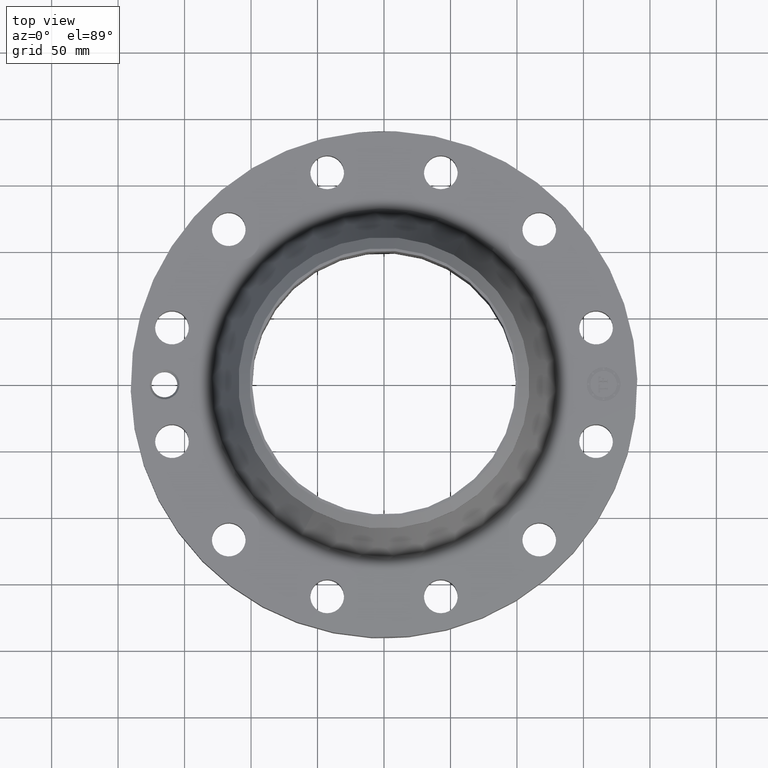
[diagram: clean part render]
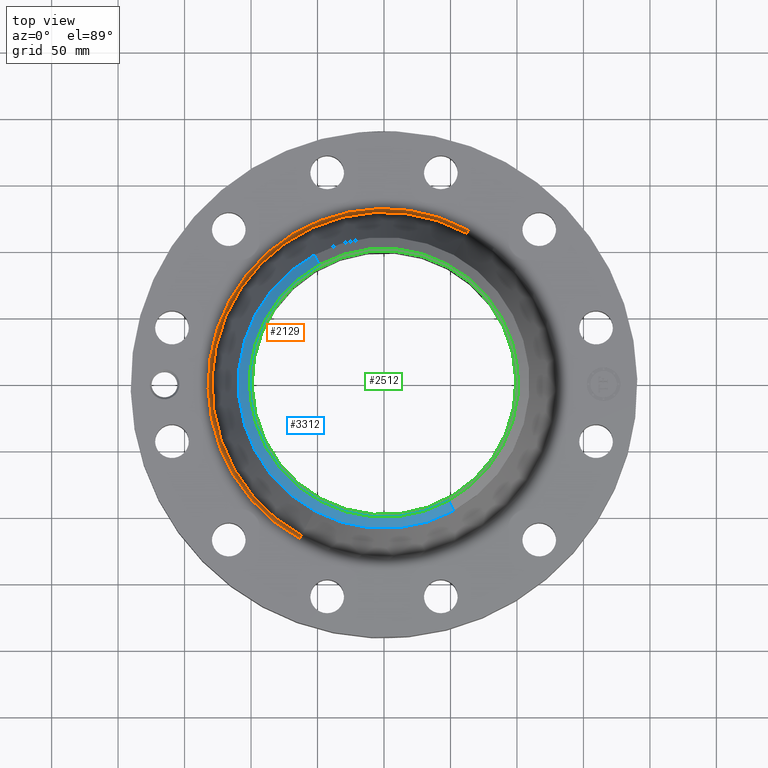
[diagram: same view with three faces highlighted in distinct colors, each labeled with its STEP entity id]
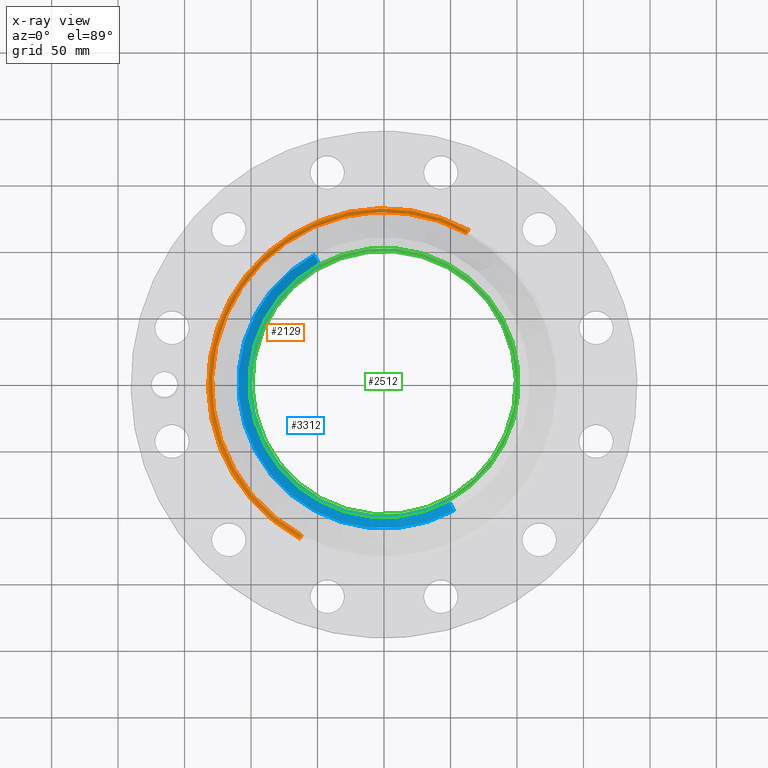
[diagram: x-ray of the same camera — body ghosted, the three highlighted faces saturated]
A machine part, top view with three faces highlighted in distinct colors.
The next image is the same camera in x-ray (body ghosted, the three faces saturated) — at least one of them is partly hidden behind the body in this view.
Their STEP definitions:

[orange] entity #2129 — the highlighted toroidal blend (fillet) surface has major radius 132.324 mm and minor (blend) radius 3.048 mm.
#575=AXIS2_PLACEMENT_3D('Circle Axis2P3D',#573,#574,$) ;
#2090=AXIS2_PLACEMENT_3D('Torus Axis2P3D',#2087,#2088,#2089) ;
#2094=AXIS2_PLACEMENT_3D('Circle Axis2P3D',#2092,#2093,$) ;
#2108=AXIS2_PLACEMENT_3D('Circle Axis2P3D',#2106,#2107,$) ;
#2120=AXIS2_PLACEMENT_3D('Circle Axis2P3D',#2118,#2119,$) ;
#573=CARTESIAN_POINT('Axis2P3D Location',(0.,0.,1.68000000001)) ;
#577=CARTESIAN_POINT('Vertex',(-2.49761562501,-4.57185473514,1.68000000001)) ;
#579=CARTESIAN_POINT('Vertex',(2.49761562501,4.57185473514,1.68000000001)) ;
#2087=CARTESIAN_POINT('Axis2P3D Location',(0.,0.,1.80000000001)) ;
#2092=CARTESIAN_POINT('Axis2P3D Location',(2.49761562501,4.57185473514,1.80000000001)) ;
#2096=CARTESIAN_POINT('Vertex',(2.44342880182,4.47266642061,1.75968292603)) ;
#2103=CARTESIAN_POINT('Vertex',(-2.44342880182,-4.47266642061,1.75968292603)) ;
#2106=CARTESIAN_POINT('Axis2P3D Location',(-2.49761562501,-4.57185473514,1.80000000001)) ;
#2118=CARTESIAN_POINT('Axis2P3D Location',(0.,0.,1.75968292603)) ;
#574=DIRECTION('Axis2P3D Direction',(0.,0.,-0.0393700787402)) ;
#2088=DIRECTION('Axis2P3D Direction',(0.,0.,-0.0393700787402)) ;
#2089=DIRECTION('Axis2P3D XDirection',(-0.0188750212049,-0.0345504945626,0.)) ;
#2093=DIRECTION('Axis2P3D Direction',(-0.0345504945626,0.0188750212049,0.)) ;
#2107=DIRECTION('Axis2P3D Direction',(0.0345504945626,-0.0188750212049,0.)) ;
#2119=DIRECTION('Axis2P3D Direction',(0.,0.,-0.0393700787402)) ;
#2124=ORIENTED_EDGE('',*,*,#581,.F.) ;
#2125=ORIENTED_EDGE('',*,*,#2110,.T.) ;
#2126=ORIENTED_EDGE('',*,*,#2122,.T.) ;
#2127=ORIENTED_EDGE('',*,*,#2098,.F.) ;
#2129=ADVANCED_FACE('PartBody',(#2128),#2091,.F.) ;
#576=CIRCLE('generated circle',#575,5.2096007073) ;
#2095=CIRCLE('generated circle',#2094,0.12) ;
#2109=CIRCLE('generated circle',#2108,0.12) ;
#2121=CIRCLE('generated circle',#2120,5.09657622524) ;
#2091=TOROIDAL_SURFACE('homeo Torus',#2090,5.2096007073,0.12) ;
#581=EDGE_CURVE('',#578,#580,#576,.T.) ;
#2098=EDGE_CURVE('',#580,#2097,#2095,.T.) ;
#2110=EDGE_CURVE('',#578,#2104,#2109,.T.) ;
#2122=EDGE_CURVE('',#2104,#2097,#2121,.T.) ;
#2123=EDGE_LOOP('',(#2124,#2125,#2126,#2127)) ;
#2128=FACE_OUTER_BOUND('',#2123,.T.) ;
#578=VERTEX_POINT('',#577) ;
#580=VERTEX_POINT('',#579) ;
#2097=VERTEX_POINT('',#2096) ;
#2104=VERTEX_POINT('',#2103) ;

[blue] entity #3312 — the highlighted conical surface has half-angle 52.5 deg.
#2501=AXIS2_PLACEMENT_3D('Circle Axis2P3D',#2499,#2500,$) ;
#3277=AXIS2_PLACEMENT_3D('Cone Axis2P3D',#3274,#3275,#3276) ;
#3295=AXIS2_PLACEMENT_3D('Circle Axis2P3D',#3293,#3294,$) ;
#3302=AXIS2_PLACEMENT_3D('Circle Axis2P3D',#3300,#3301,$) ;
#2494=CARTESIAN_POINT('Vertex',(1.91062590897,-3.49737726716,4.44000000002)) ;
#2496=CARTESIAN_POINT('Vertex',(-1.91062590897,3.49737726716,4.44000000002)) ;
#2499=CARTESIAN_POINT('Axis2P3D Location',(0.,0.,4.44000000002)) ;
#3274=CARTESIAN_POINT('Axis2P3D Location',(0.,0.,4.44000000002)) ;
#3279=CARTESIAN_POINT('Line Origine',(1.98967355403,-3.64207301087,4.31348318666)) ;
#3283=CARTESIAN_POINT('Vertex',(2.06872119909,-3.78676875457,4.1869663733)) ;
#3286=CARTESIAN_POINT('Line Origine',(-1.98967355403,3.64207301087,4.31348318666)) ;
#3290=CARTESIAN_POINT('Vertex',(-2.06872119909,3.78676875457,4.1869663733)) ;
#3293=CARTESIAN_POINT('Axis2P3D Location',(0.,0.,4.1869663733)) ;
#3297=CARTESIAN_POINT('Vertex',(-2.06872119909,-3.78676875457,4.1869663733)) ;
#3300=CARTESIAN_POINT('Axis2P3D Location',(0.,0.,4.1869663733)) ;
#2500=DIRECTION('Axis2P3D Direction',(0.,0.,-0.0393700787402)) ;
#3275=DIRECTION('Axis2P3D Direction',(-0.,-0.,-0.0393700787402)) ;
#3276=DIRECTION('Axis2P3D XDirection',(-0.0188750212049,0.0345504945626,0.)) ;
#3280=DIRECTION('Vector Direction',(0.014974561121,-0.02741075027,-0.023966985394)) ;
#3287=DIRECTION('Vector Direction',(-0.014974561121,0.02741075027,-0.023966985394)) ;
#3294=DIRECTION('Axis2P3D Direction',(0.,0.,-0.0393700787402)) ;
#3301=DIRECTION('Axis2P3D Direction',(0.,0.,-0.0393700787402)) ;
#3281=VECTOR('Line Direction',#3280,0.0393700787402) ;
#3288=VECTOR('Line Direction',#3287,0.0393700787402) ;
#3306=ORIENTED_EDGE('',*,*,#3285,.F.) ;
#3307=ORIENTED_EDGE('',*,*,#2503,.F.) ;
#3308=ORIENTED_EDGE('',*,*,#3292,.T.) ;
#3309=ORIENTED_EDGE('',*,*,#3299,.T.) ;
#3310=ORIENTED_EDGE('',*,*,#3304,.F.) ;
#3312=ADVANCED_FACE('PartBody',(#3311),#3278,.T.) ;
#2502=CIRCLE('generated circle',#2501,3.9852401575) ;
#3296=CIRCLE('generated circle',#3295,4.31500000002) ;
#3303=CIRCLE('generated circle',#3302,4.31500000002) ;
#3278=CONICAL_SURFACE('Cone',#3277,3.9852401575,0.916297857297) ;
#2503=EDGE_CURVE('',#2497,#2495,#2502,.F.) ;
#3285=EDGE_CURVE('',#2495,#3284,#3282,.T.) ;
#3292=EDGE_CURVE('',#2497,#3291,#3289,.T.) ;
#3299=EDGE_CURVE('',#3291,#3298,#3296,.F.) ;
#3304=EDGE_CURVE('',#3284,#3298,#3303,.T.) ;
#3305=EDGE_LOOP('',(#3306,#3307,#3308,#3309,#3310)) ;
#3311=FACE_OUTER_BOUND('',#3305,.T.) ;
#3282=LINE('Line',#3279,#3281) ;
#3289=LINE('Line',#3286,#3288) ;
#2495=VERTEX_POINT('',#2494) ;
#2497=VERTEX_POINT('',#2496) ;
#3284=VERTEX_POINT('',#3283) ;
#3291=VERTEX_POINT('',#3290) ;
#3298=VERTEX_POINT('',#3297) ;

[green] entity #2512 — the highlighted planar face has unit normal (0, 0, -1).
#1240=AXIS2_PLACEMENT_3D('Circle Axis2P3D',#1238,#1239,$) ;
#1308=AXIS2_PLACEMENT_3D('Circle Axis2P3D',#1306,#1307,$) ;
#2488=AXIS2_PLACEMENT_3D('Plane Axis2P3D',#2485,#2486,#2487) ;
#2492=AXIS2_PLACEMENT_3D('Circle Axis2P3D',#2490,#2491,$) ;
#2501=AXIS2_PLACEMENT_3D('Circle Axis2P3D',#2499,#2500,$) ;
#1238=CARTESIAN_POINT('Axis2P3D Location',(0.,0.,4.44000000002)) ;
#1242=CARTESIAN_POINT('Vertex',(1.87287586656,3.42827627804,4.44000000002)) ;
#1244=CARTESIAN_POINT('Vertex',(-1.87287586656,-3.42827627804,4.44000000002)) ;
#1306=CARTESIAN_POINT('Axis2P3D Location',(0.,0.,4.44000000002)) ;
#2485=CARTESIAN_POINT('Axis2P3D Location',(0.,4.31500000002,4.44000000002)) ;
#2490=CARTESIAN_POINT('Axis2P3D Location',(0.,0.,4.44000000002)) ;
#2494=CARTESIAN_POINT('Vertex',(1.91062590897,-3.49737726716,4.44000000002)) ;
#2496=CARTESIAN_POINT('Vertex',(-1.91062590897,3.49737726716,4.44000000002)) ;
#2499=CARTESIAN_POINT('Axis2P3D Location',(0.,0.,4.44000000002)) ;
#1239=DIRECTION('Axis2P3D Direction',(0.,0.,-0.0393700787402)) ;
#1307=DIRECTION('Axis2P3D Direction',(0.,0.,-0.0393700787402)) ;
#2486=DIRECTION('Axis2P3D Direction',(0.,0.,-0.0393700787402)) ;
#2487=DIRECTION('Axis2P3D XDirection',(0.0393700787402,0.,0.)) ;
#2491=DIRECTION('Axis2P3D Direction',(0.,0.,-0.0393700787402)) ;
#2500=DIRECTION('Axis2P3D Direction',(0.,0.,-0.0393700787402)) ;
#2505=ORIENTED_EDGE('',*,*,#2498,.T.) ;
#2506=ORIENTED_EDGE('',*,*,#2503,.T.) ;
#2509=ORIENTED_EDGE('',*,*,#1310,.T.) ;
#2510=ORIENTED_EDGE('',*,*,#1246,.T.) ;
#2511=FACE_BOUND('',#2508,.T.) ;
#2512=ADVANCED_FACE('PartBody',(#2507,#2511),#2489,.F.) ;
#1241=CIRCLE('generated circle',#1240,3.90650000002) ;
#1309=CIRCLE('generated circle',#1308,3.90650000002) ;
#2493=CIRCLE('generated circle',#2492,3.9852401575) ;
#2502=CIRCLE('generated circle',#2501,3.9852401575) ;
#1246=EDGE_CURVE('',#1243,#1245,#1241,.T.) ;
#1310=EDGE_CURVE('',#1245,#1243,#1309,.T.) ;
#2498=EDGE_CURVE('',#2495,#2497,#2493,.F.) ;
#2503=EDGE_CURVE('',#2497,#2495,#2502,.F.) ;
#2504=EDGE_LOOP('',(#2505,#2506)) ;
#2508=EDGE_LOOP('',(#2509,#2510)) ;
#2507=FACE_OUTER_BOUND('',#2504,.T.) ;
#2489=PLANE('',#2488) ;
#1243=VERTEX_POINT('',#1242) ;
#1245=VERTEX_POINT('',#1244) ;
#2495=VERTEX_POINT('',#2494) ;
#2497=VERTEX_POINT('',#2496) ;